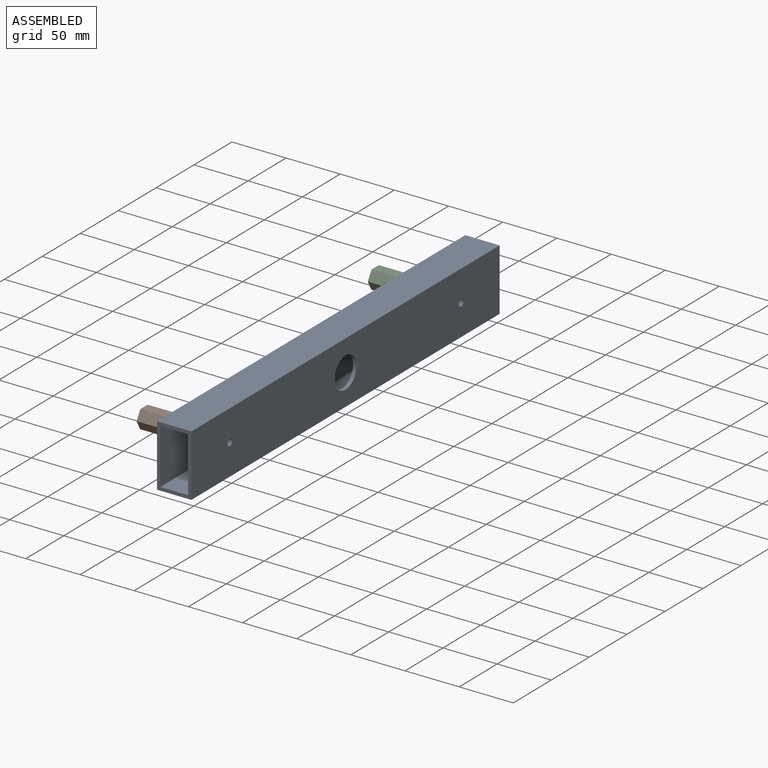
[diagram: assembled view]
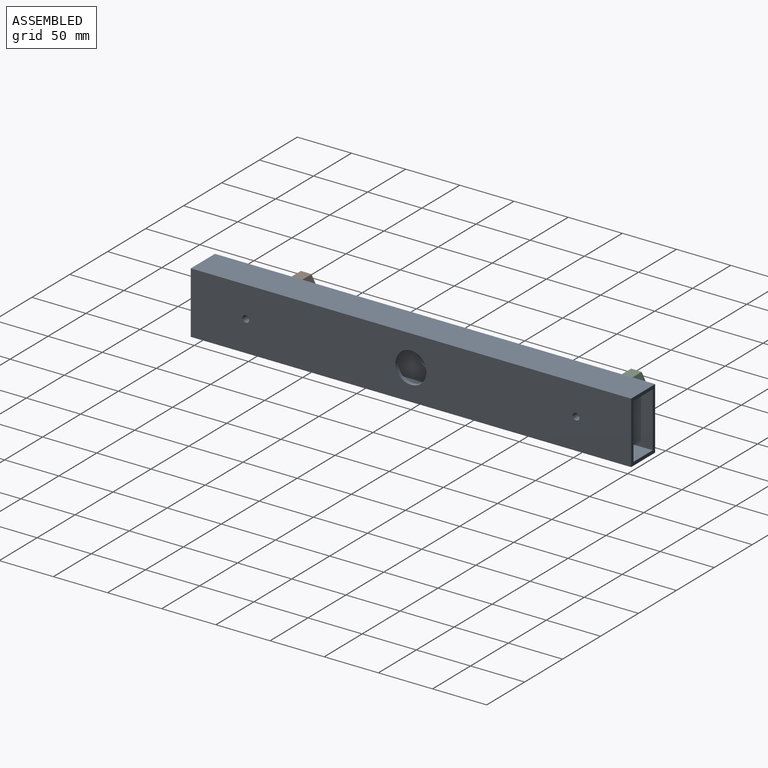
[diagram: assembled view, second angle]
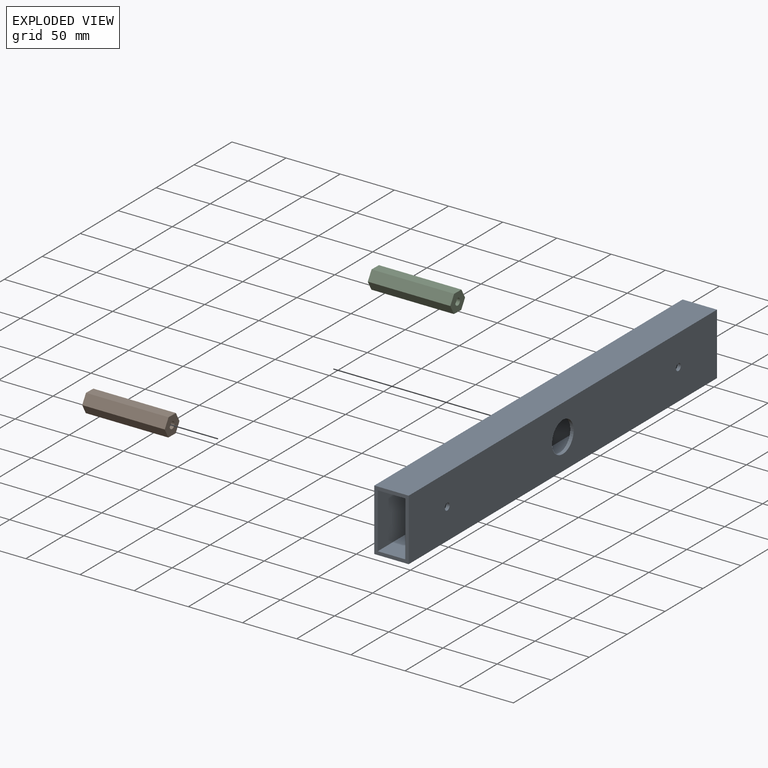
[diagram: exploded view]
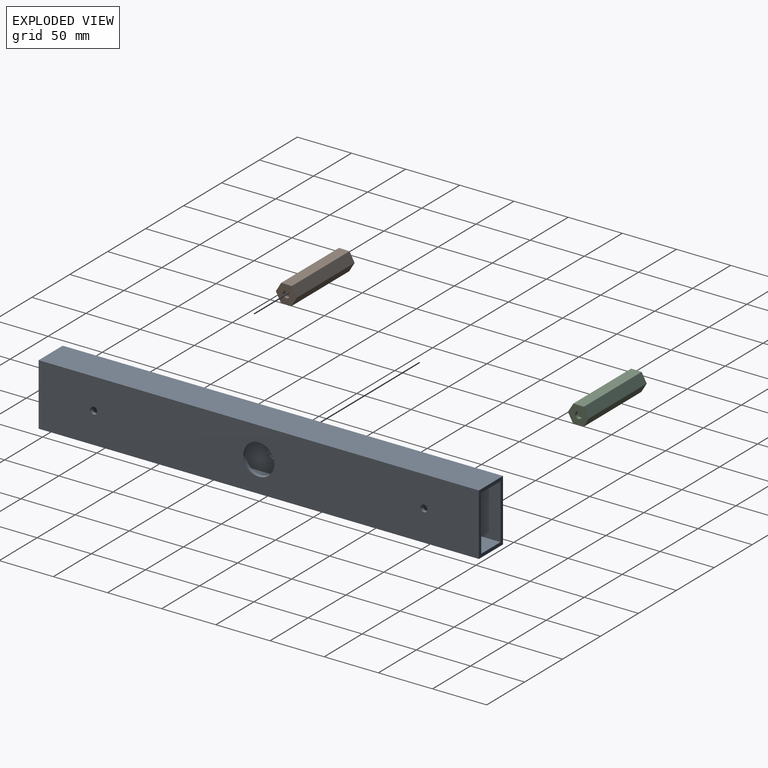
[diagram: exploded view, second angle]
ASSEMBLY  parts=3 mates=2
PART A: 26 faces, bbox 31.8x406.4x57.2 mm
  f0: plane 406.4x57.15mm, normal (1,0,0), area 22521.1mm2, adj f4,f5,f8,f9,f22,f24,f25
  f1: plane 406.4x50.8mm, normal (-1,0,0), area 19940.5mm2, adj f6,f7,f8,f9,f22,f24,f25
  f2: plane 406.4x50.8mm, normal (1,0,0), area 19724.5mm2, adj f6,f7,f8,f9,f10,f11,f12,f13
  f3: plane 406.4x57.15mm, normal (-1,0,0), area 22305.1mm2, adj f4,f5,f8,f9,f10,f11,f12,f13
  f4: plane 406.4x31.75mm, normal (0,0,-1), area 12903.2mm2, adj f0,f3,f8,f9
  f5: plane 406.4x31.75mm, normal (0,0,1), area 12903.2mm2, adj f0,f3,f8,f9
  f6: plane 406.4x25.4mm, normal (0,0,1), area 10322.6mm2, adj f1,f2,f8,f9
  f7: plane 406.4x25.4mm, normal (0,0,-1), area 10322.6mm2, adj f1,f2,f8,f9
  f8: plane 57.15x31.75mm, normal (0,-1,0), area 524.2mm2, adj f0,f1,f2,f3,f4,f5,f6,f7
  f9: plane 57.15x31.75mm, normal (0,1,0), area 524.2mm2, adj f0,f1,f2,f3,f4,f5,f6,f7
  f10: plane 7.33x3.18mm, normal (0,0,-1), area 23.3mm2, adj f2,f3,f11,f15
  f11: plane 6.35x3.67mm, normal (0,-0.87,-0.5), area 23.3mm2, adj f2,f3,f10,f12
  f12: plane 6.35x3.67mm, normal (0,-0.87,0.5), area 23.3mm2, adj f2,f3,f11,f13
  f13: plane 7.33x3.18mm, normal (0,0,1), area 23.3mm2, adj f2,f3,f12,f14
  f14: plane 6.35x3.67mm, normal (0,0.87,0.5), area 23.3mm2, adj f2,f3,f13,f15
  f15: plane 6.35x3.67mm, normal (0,0.87,-0.5), area 23.3mm2, adj f2,f3,f10,f14
  f16: plane 6.35x3.67mm, normal (0,0.87,0.5), area 23.3mm2, adj f2,f3,f17,f19
  f17: plane 6.35x3.67mm, normal (0,0.87,-0.5), area 23.3mm2, adj f2,f3,f16,f18
  f18: plane 7.33x3.18mm, normal (0,0,-1), area 23.3mm2, adj f2,f3,f17,f20
  f19: plane 7.33x3.18mm, normal (0,0,1), area 23.3mm2, adj f2,f3,f16,f21
  f20: plane 6.35x3.67mm, normal (0,-0.87,-0.5), area 23.3mm2, adj f2,f3,f18,f21
  f21: plane 6.35x3.67mm, normal (0,-0.87,0.5), area 23.3mm2, adj f2,f3,f19,f20
  f22: cylinder r=14.29mm len=28.58mm, axis (-1,0,0), area 285mm2, adj f0,f1
  f23: cylinder r=14.29mm len=28.58mm, axis (-1,0,0), area 285mm2, adj f2,f3
  f24: cylinder r=3.17mm len=6.35mm, axis (1,0,0), area 63.3mm2, adj f0,f1
  f25: cylinder r=3.17mm len=6.35mm, axis (1,0,0), area 63.3mm2, adj f0,f1
PART B: 10 faces, bbox 19.4x76.2x17 mm
  f0: plane 76.2x8.32mm, normal (0.86,0,-0.51), area 738.9mm2, adj f1,f5,f6,f7
  f1: plane 76.2x8.48mm, normal (0.87,0,0.49), area 738.9mm2, adj f0,f2,f6,f7
  f2: plane 76.2x9.7mm, normal (0.02,0,1), area 738.9mm2, adj f1,f3,f6,f7
  f3: plane 76.2x8.32mm, normal (-0.86,0,0.51), area 738.9mm2, adj f2,f4,f6,f7
  f4: plane 76.2x8.48mm, normal (-0.87,0,-0.49), area 738.9mm2, adj f3,f5,f6,f7
  f5: plane 76.2x9.7mm, normal (-0.02,0,-1), area 738.9mm2, adj f0,f4,f6,f7
  f6: plane 19.39x16.96mm, normal (0,-1,0), area 213.2mm2, adj f0,f1,f2,f3,f4,f5,f8
  f7: plane 19.39x16.96mm, normal (0,1,0), area 244.3mm2, adj f0,f1,f2,f3,f4,f5
  f8: cylinder r=3.14mm len=6.29mm, axis (0,-1,0), area 62.7mm2, adj f6,f9
  f9: plane 6.29x6.29mm, normal (0,-1,0), area 31.1mm2, adj f8
PART C: same geometry as B
PLACE A t=(-15.88,0,0)mm
PLACE B rot(axis=(0.71,-0.71,0),180deg) t=(-79.38,-152.4,0)mm
PLACE C rot(axis=(0,0,1),90deg) t=(-79.38,152.4,0)mm
MATE fastened C.f8 <-> A.f24  axis (1,0,0) through (-3.18,152.4,0)mm
MATE fastened B.f8 <-> A.f25  axis (1,0,0) through (-3.18,-152.4,0)mm
